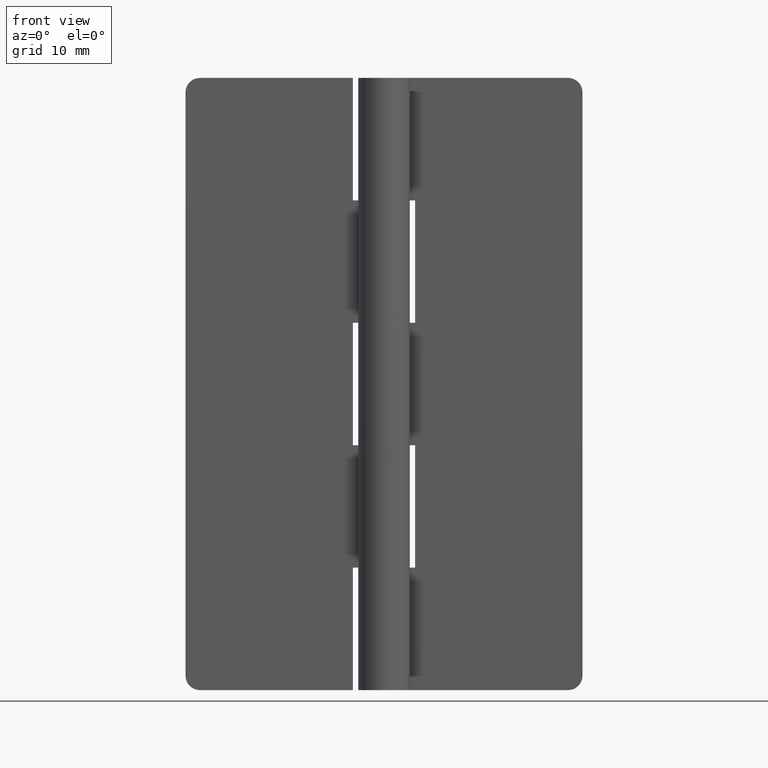
[diagram: clean part render]
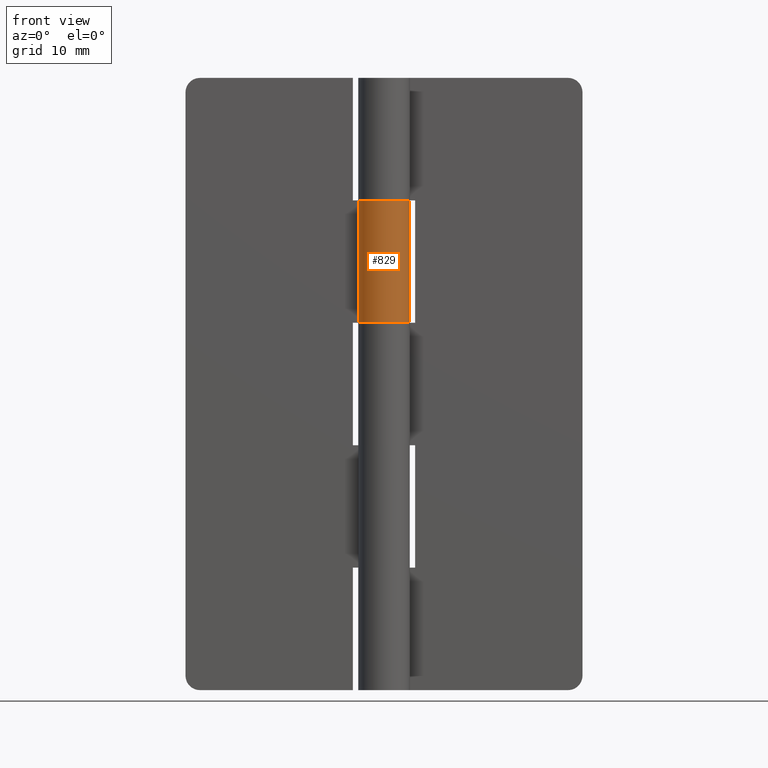
[diagram: same view with one face highlighted and labeled with its STEP entity id]
A machine part, front view. The second image highlights one B-rep face of the part: STEP entity #829.
In plain terms, the highlighted face is a freeform B-spline surface patch.
Its self-contained STEP definition (entity closure, byte-faithful):
#171=CARTESIAN_POINT('',(0.0,2.700001000000000,38.399985999999998));
#172=VERTEX_POINT('',#171);
#173=CARTESIAN_POINT('',(-2.277609580239995,1.450000000000000,38.399985999999963));
#174=VERTEX_POINT('',#173);
#175=CARTESIAN_POINT('',(0.0,2.700001000000000,38.399985999999963));
#176=CARTESIAN_POINT('',(2.095110625964414,2.700001000000000,38.399985999999963));
#177=CARTESIAN_POINT('',(2.615416020906701,0.670525493613448,38.399985999999963));
#178=CARTESIAN_POINT('',(3.135721415848987,-1.358950012773105,38.399985999999963));
#179=CARTESIAN_POINT('',(1.299038865854484,-2.366960799210772,38.399985999999963));
#180=CARTESIAN_POINT('',(-0.537643684140019,-3.374971585648440,38.399985999999963));
#181=CARTESIAN_POINT('',(-1.970202425244971,-1.846160286529811,38.399985999999963));
#182=CARTESIAN_POINT('',(-3.402761166349926,-0.317348987411180,38.399985999999963));
#183=CARTESIAN_POINT('',(-2.277609580239995,1.449999999999998,38.399985999999963));
#191=(BOUNDED_CURVE()B_SPLINE_CURVE(2,(#175,#176,#177,#178,#179,#180,#181,#182,#183),.UNSPECIFIED.,.F.,.U.)B_SPLINE_CURVE_WITH_KNOTS((3,2,2,2,3),(0.0,0.250000000000000,0.500000000000000,0.750000000000000,1.0),.UNSPECIFIED.)CURVE()GEOMETRIC_REPRESENTATION_ITEM()RATIONAL_B_SPLINE_CURVE((1.0,0.790045151695021,1.0,0.790045151695021,1.0,0.790045151695021,1.0,0.790045151695021,1.0))REPRESENTATION_ITEM(''));
#192=EDGE_CURVE('',#172,#174,#191,.T.);
#489=CARTESIAN_POINT('',(-2.277609580239995,1.450000000000000,51.199989000000002));
#490=VERTEX_POINT('',#489);
#491=CARTESIAN_POINT('',(0.0,2.700001000000000,51.199989000000002));
#492=VERTEX_POINT('',#491);
#493=CARTESIAN_POINT('',(-2.277609580239994,1.450000000000000,51.199989000000002));
#494=CARTESIAN_POINT('',(-3.402761166349925,-0.317348987411176,51.199988999999995));
#495=CARTESIAN_POINT('',(-1.970202425244974,-1.846160286529808,51.199989000000002));
#496=CARTESIAN_POINT('',(-0.537643684140022,-3.374971585648441,51.199988999999995));
#497=CARTESIAN_POINT('',(1.299038865854482,-2.366960799210773,51.199989000000002));
#498=CARTESIAN_POINT('',(3.135721415848985,-1.358950012773107,51.199988999999995));
#499=CARTESIAN_POINT('',(2.615416020906702,0.670525493613444,51.199989000000002));
#500=CARTESIAN_POINT('',(2.095110625964417,2.700001000000000,51.199988999999995));
#501=CARTESIAN_POINT('',(0.0,2.700001000000000,51.199989000000002));
#509=(BOUNDED_CURVE()B_SPLINE_CURVE(2,(#493,#494,#495,#496,#497,#498,#499,#500,#501),.UNSPECIFIED.,.F.,.U.)B_SPLINE_CURVE_WITH_KNOTS((3,2,2,2,3),(0.0,0.250000000000000,0.500000000000000,0.750000000000000,1.0),.UNSPECIFIED.)CURVE()GEOMETRIC_REPRESENTATION_ITEM()RATIONAL_B_SPLINE_CURVE((1.0,0.790045151695021,1.0,0.790045151695021,1.0,0.790045151695021,1.0,0.790045151695021,1.0))REPRESENTATION_ITEM(''));
#510=EDGE_CURVE('',#490,#492,#509,.T.);
#683=CARTESIAN_POINT('',(-2.277609580239995,1.450000000000000,51.199989000000002));
#684=CARTESIAN_POINT('',(-2.277609580239995,1.450000000000000,38.399985999999963));
#685=QUASI_UNIFORM_CURVE('',1,(#683,#684),.UNSPECIFIED.,.F.,.U.);
#686=EDGE_CURVE('',#490,#174,#685,.T.);
#742=CARTESIAN_POINT('',(0.0,2.700001000000000,51.199989000000002));
#743=CARTESIAN_POINT('',(0.0,2.700001000000000,38.399985999999998));
#744=QUASI_UNIFORM_CURVE('',1,(#742,#743),.UNSPECIFIED.,.F.,.U.);
#745=EDGE_CURVE('',#492,#172,#744,.T.);
#801=CARTESIAN_POINT('',(-2.238872525274995,1.509123989462019,51.519989075000012));
#802=CARTESIAN_POINT('',(-2.238872525274995,1.509123989462019,38.071985923124963));
#803=CARTESIAN_POINT('',(-4.113609718949111,-1.272156822676158,51.519989074999998));
#804=CARTESIAN_POINT('',(-4.113609718949111,-1.272156822676158,38.071985923124963));
#805=CARTESIAN_POINT('',(-0.996075208128227,-2.509549676685700,51.519989075000012));
#806=CARTESIAN_POINT('',(-0.996075208128227,-2.509549676685700,38.071985923124963));
#807=CARTESIAN_POINT('',(2.121459302692658,-3.746942530695243,51.519989074999998));
#808=CARTESIAN_POINT('',(2.121459302692658,-3.746942530695243,38.071985923124963));
#809=CARTESIAN_POINT('',(2.664393408355061,-0.437050529704626,51.519989075000012));
#810=CARTESIAN_POINT('',(2.664393408355061,-0.437050529704626,38.071985923124963));
#811=CARTESIAN_POINT('',(3.207327514017462,2.872841471285990,51.519989074999998));
#812=CARTESIAN_POINT('',(3.207327514017462,2.872841471285990,38.071985923124963));
#813=CARTESIAN_POINT('',(-0.142147113584253,2.696256589811262,51.519989075000012));
#814=CARTESIAN_POINT('',(-0.142147113584253,2.696256589811262,38.071985923124963));
#822=(BOUNDED_SURFACE()B_SPLINE_SURFACE(1,2,((#801,#803,#805,#807,#809,#811,#813),(#802,#804,#806,#808,#810,#812,#814)),.UNSPECIFIED.,.F.,.F.,.U.)B_SPLINE_SURFACE_WITH_KNOTS((2,2),(3,2,2,3),(0.0,13.448003151875049),(0.0,5.170632681176847,10.341265362353690,15.511898043530540),.UNSPECIFIED.)GEOMETRIC_REPRESENTATION_ITEM()RATIONAL_B_SPLINE_SURFACE(((1.0,0.627057105746662,1.0,0.627057105746662,1.0,0.627057105746662,1.0),(1.0,0.627057105746662,1.0,0.627057105746662,1.0,0.627057105746662,1.0)))REPRESENTATION_ITEM('')SURFACE());
#823=ORIENTED_EDGE('',*,*,#686,.T.);
#824=ORIENTED_EDGE('',*,*,#192,.F.);
#825=ORIENTED_EDGE('',*,*,#745,.F.);
#826=ORIENTED_EDGE('',*,*,#510,.F.);
#827=EDGE_LOOP('',(#823,#824,#825,#826));
#828=FACE_OUTER_BOUND('',#827,.T.);
#829=ADVANCED_FACE('',(#828),#822,.T.);